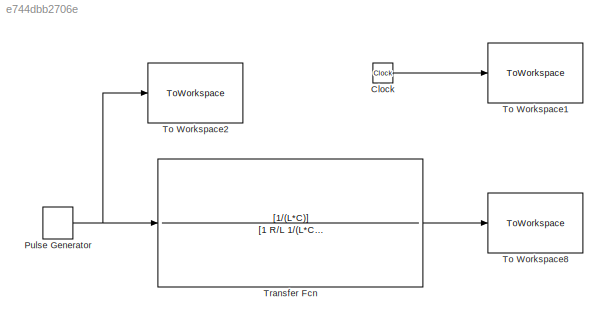
MODEL slx_e744dbb2706e
KIND model
CONFIG InitFcn = R=536;\nL=23.74e-3;\nC=82.38e-9;
BLOCK [Clock] Clock
  Decimation = 1000
BLOCK [DiscretePulseGenerator] Pulse Generator
  Amplitude = 5
  Period = 0.001360544
  Ports = [0, 1]
  PulseType = Time based
  PulseWidth = 5
BLOCK [ToWorkspace] To Workspace1
  MaxDataPoints = inf
  Ports = [1]
  SampleTime = -1
  VariableName = Tiempo
BLOCK [ToWorkspace] To Workspace2
  MaxDataPoints = inf
  Ports = [1]
  SampleTime = -1
  VariableName = Entrada
BLOCK [ToWorkspace] To Workspace8
  MaxDataPoints = inf
  Ports = [1]
  SampleTime = -1
  VariableName = Voltaje_Capacitor
BLOCK [TransferFcn] Transfer Fcn
  Denominator = [1 R/L 1/(L*C)]
  Numerator = [1/(L*C)]
LINE Clock:1 -> To Workspace1:1
NET Pulse Generator:1 -> To Workspace2:1, Transfer Fcn:1
LINE Transfer Fcn:1 -> To Workspace8:1
note: NET lines group one-source signal fan-out (src -> all destinations, sorted); 1:1 wires keep LINE
